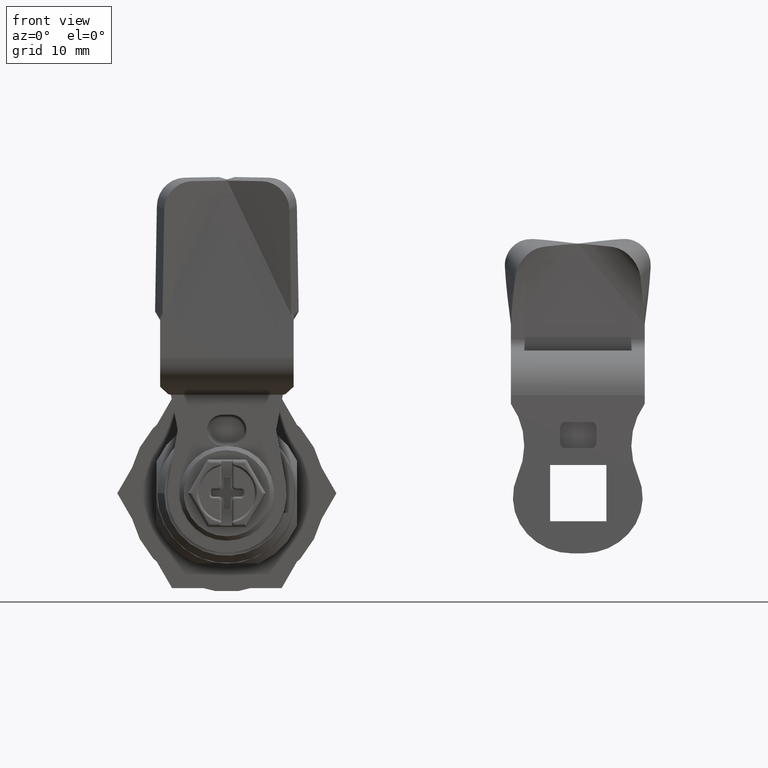
[diagram: clean part render]
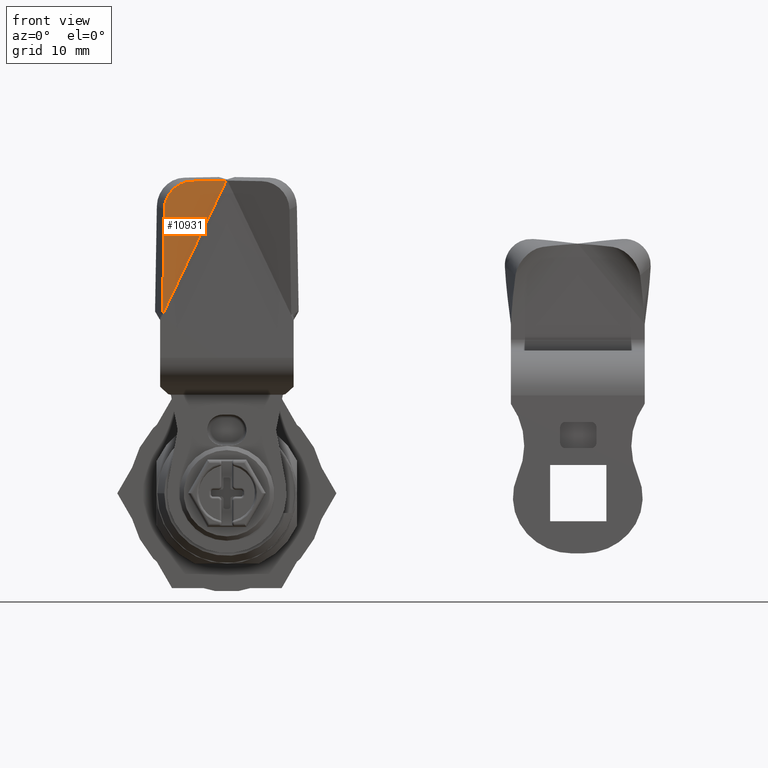
[diagram: same view with one face highlighted and labeled with its STEP entity id]
A machine part, front view. The second image highlights one B-rep face of the part: STEP entity #10931.
In plain terms, the highlighted planar face has unit normal (0.2641, -0.9563, -0.1254).
Its self-contained STEP definition (entity closure, byte-faithful):
#258 = FACE_OUTER_BOUND ( 'NONE', #10281, .T. ) ;
#647 = EDGE_CURVE ( 'NONE', #12290, #5629, #2278, .T. ) ;
#1476 = PLANE ( 'NONE',  #8300 ) ;
#1519 = ORIENTED_EDGE ( 'NONE', *, *, #7910, .F. ) ;
#1581 = ORIENTED_EDGE ( 'NONE', *, *, #647, .T. ) ;
#2278 = LINE ( 'NONE', #6403, #10737 ) ;
#2373 = DIRECTION ( 'NONE',  ( 0.01693441380321100004, -0.1254440722982030076, 0.9919561534434798711 ) ) ;
#2578 = CARTESIAN_POINT ( 'NONE',  ( -0.1986349325117689191, -1.371818403805933118, 1.591859738032803229 ) ) ;
#3061 = CARTESIAN_POINT ( 'NONE',  ( -0.3605811744759083171, -1.338736416060675394, 0.9987245287044805853 ) ) ;
#3160 = CIRCLE ( 'NONE', #10705, 0.1574803149606300023 ) ;
#3563 = CARTESIAN_POINT ( 'NONE',  ( -0.003031175658483330464, -1.338736416060646750, 1.751461368320085255 ) ) ;
#4128 = ORIENTED_EDGE ( 'NONE', *, *, #12084, .F. ) ;
#5025 = VECTOR ( 'NONE', #11645, 39.37007874015748143 ) ;
#5103 = VECTOR ( 'NONE', #2373, 39.37007874015748143 ) ;
#5485 = DIRECTION ( 'NONE',  ( 0.2640927837858078608, -0.9563047559630275529, -0.1254440722982040068 ) ) ;
#5629 = VERTEX_POINT ( 'NONE', #3563 ) ;
#6114 = VERTEX_POINT ( 'NONE', #11375 ) ;
#6264 = CARTESIAN_POINT ( 'NONE',  ( -0.1959680956919913342, -1.391573375821389735, 1.748073305504196595 ) ) ;
#6403 = CARTESIAN_POINT ( 'NONE',  ( -0.3605811744758890547, -1.338736416060669399, 0.9987245287044290709 ) ) ;
#6737 = CARTESIAN_POINT ( 'NONE',  ( -0.1959680956912901728, -1.391573375821216541, 1.748073305504196595 ) ) ;
#6920 = DIRECTION ( 'NONE',  ( 0.4290568145682470691, 0.000000000000000000, 0.9032775043543089799 ) ) ;
#7563 = DIRECTION ( 'NONE',  ( -0.01693441380321110065, 0.1254440722982030076, -0.9919561534434798711 ) ) ;
#7626 = CARTESIAN_POINT ( 'NONE',  ( -0.02035657194364960676, -1.088423712692007994, -0.1932358690637795418 ) ) ;
#7910 = EDGE_CURVE ( 'NONE', #12290, #6114, #11658, .T. ) ;
#8300 = AXIS2_PLACEMENT_3D ( 'NONE', #7626, #5485, #7563 ) ;
#8612 = EDGE_CURVE ( 'NONE', #10565, #5629, #11889, .T. ) ;
#8654 = DIRECTION ( 'NONE',  ( -0.9643486025196126299, -0.2640927837853251914, -0.01693441380702305835 ) ) ;
#9474 = CARTESIAN_POINT ( 'NONE',  ( -0.3605811744759516158, -1.338736416060653411, 0.9987245287043661213 ) ) ;
#10281 = EDGE_LOOP ( 'NONE', ( #12990, #4128, #1519, #1581 ) ) ;
#10565 = VERTEX_POINT ( 'NONE', #6264 ) ;
#10705 = AXIS2_PLACEMENT_3D ( 'NONE', #2578, #12875, #8654 ) ;
#10737 = VECTOR ( 'NONE', #6920, 39.37007874015748854 ) ;
#10931 = ADVANCED_FACE ( 'NONE', ( #258 ), #1476, .T. ) ;
#11375 = CARTESIAN_POINT ( 'NONE',  ( -0.3505008541683681256, -1.413407818575437069, 1.589192901213153597 ) ) ;
#11645 = DIRECTION ( 'NONE',  ( 0.9643486025195477929, 0.2640927837858069172, 0.01693441380320469605 ) ) ;
#11658 = LINE ( 'NONE', #9474, #5103 ) ;
#11889 = LINE ( 'NONE', #6737, #5025 ) ;
#12084 = EDGE_CURVE ( 'NONE', #6114, #10565, #3160, .T. ) ;
#12290 = VERTEX_POINT ( 'NONE', #3061 ) ;
#12875 = DIRECTION ( 'NONE',  ( -0.2640927837858078608, 0.9563047559630275529, 0.1254440722982039513 ) ) ;
#12990 = ORIENTED_EDGE ( 'NONE', *, *, #8612, .F. ) ;